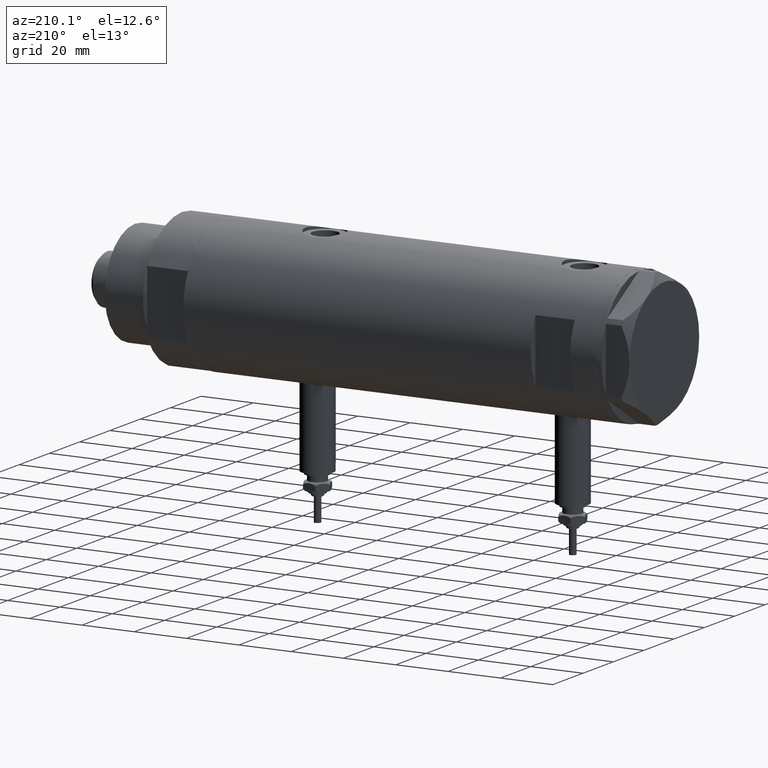
[diagram: clean part render]
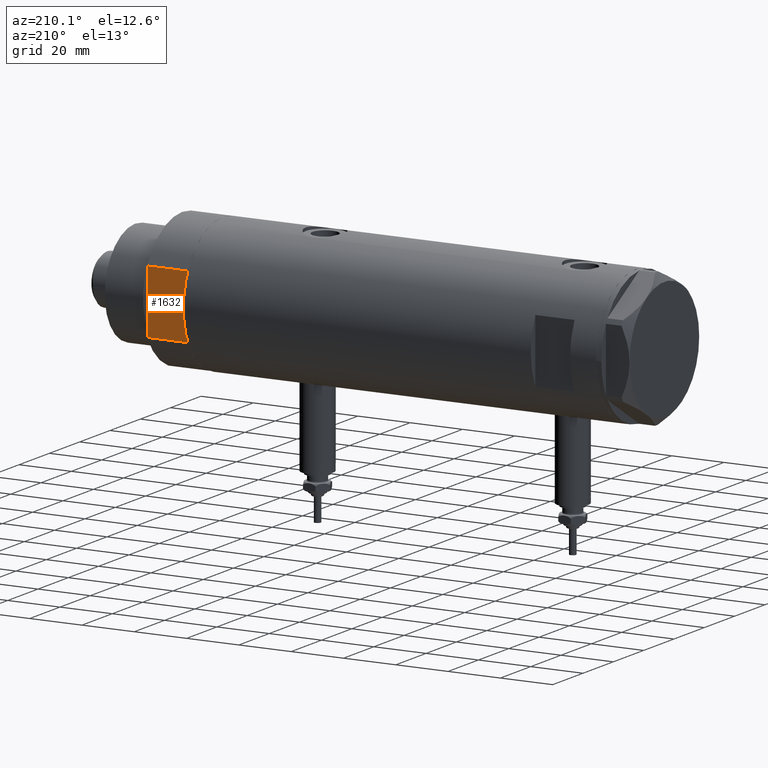
[diagram: same view with one face highlighted and labeled with its STEP entity id]
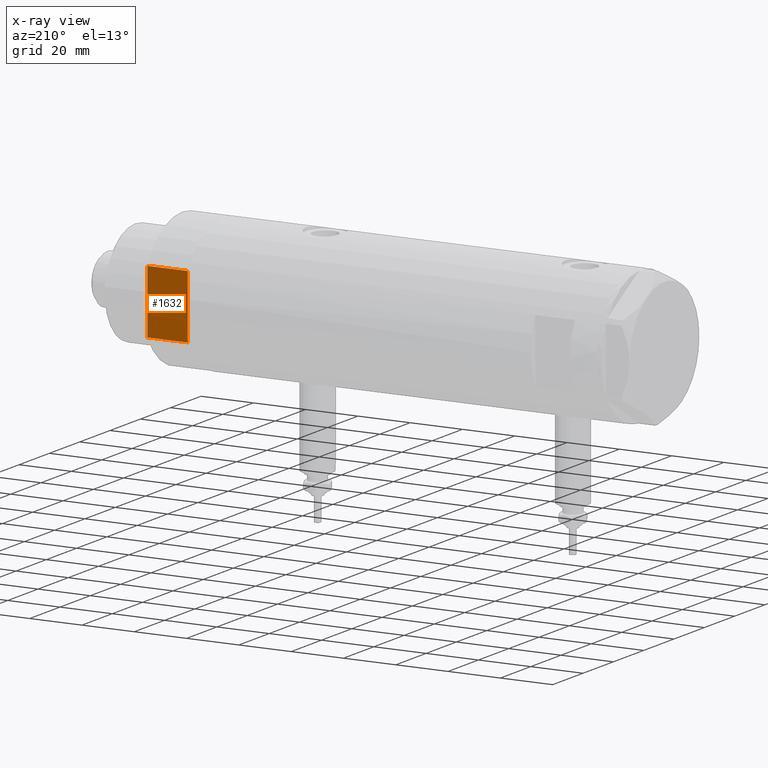
[diagram: x-ray of the same camera — body ghosted, the highlighted face saturated]
A machine part, auxiliary view. The second image highlights one B-rep face of the part: STEP entity #1632.
The next image is the same camera in x-ray: the body ghosted, the highlighted face saturated — about 0% of this face is hidden behind the body in this view.
In plain terms, the highlighted planar face has unit normal (0, -1, -0).
Its self-contained STEP definition (entity closure, byte-faithful):
#446 = LINE ( 'NONE', #5811, #4795 ) ;
#551 = ORIENTED_EDGE ( 'NONE', *, *, #1533, .F. ) ;
#588 = VERTEX_POINT ( 'NONE', #6152 ) ;
#621 = ORIENTED_EDGE ( 'NONE', *, *, #6275, .T. ) ;
#719 = VERTEX_POINT ( 'NONE', #5365 ) ;
#1178 = AXIS2_PLACEMENT_3D ( 'NONE', #2046, #4497, #2011 ) ;
#1315 = VERTEX_POINT ( 'NONE', #1731 ) ;
#1379 = DIRECTION ( 'NONE',  ( -0.000000000000000000, -0.000000000000000000, 1.000000000000000000 ) ) ;
#1533 = EDGE_CURVE ( 'NONE', #1315, #588, #446, .T. ) ;
#1632 = ADVANCED_FACE ( 'NONE', ( #5488 ), #2136, .F. ) ;
#1731 = CARTESIAN_POINT ( 'NONE',  ( 12.12435565298214080, 23.00000000000000355, 0.000000000000000000 ) ) ;
#2011 = DIRECTION ( 'NONE',  ( 0.000000000000000000, -0.000000000000000000, -1.000000000000000000 ) ) ;
#2046 = CARTESIAN_POINT ( 'NONE',  ( -12.12435565298215145, 23.00000000000000355, 0.000000000000000000 ) ) ;
#2136 = PLANE ( 'NONE',  #1178 ) ;
#2225 = LINE ( 'NONE', #4187, #3257 ) ;
#2954 = VECTOR ( 'NONE', #5975, 1000.000000000000000 ) ;
#2994 = LINE ( 'NONE', #3025, #2954 ) ;
#3025 = CARTESIAN_POINT ( 'NONE',  ( -12.12435565298215145, 23.00000000000000355, 15.50000000000000000 ) ) ;
#3056 = EDGE_LOOP ( 'NONE', ( #5538, #551, #4707, #621 ) ) ;
#3257 = VECTOR ( 'NONE', #6045, 1000.000000000000000 ) ;
#3402 = EDGE_CURVE ( 'NONE', #719, #1315, #4026, .T. ) ;
#3488 = CARTESIAN_POINT ( 'NONE',  ( -12.12435565298215145, 23.00000000000000355, 0.000000000000000000 ) ) ;
#3522 = VERTEX_POINT ( 'NONE', #5196 ) ;
#4026 = LINE ( 'NONE', #3488, #4693 ) ;
#4187 = CARTESIAN_POINT ( 'NONE',  ( -12.12435565298215145, 23.00000000000000355, 0.000000000000000000 ) ) ;
#4497 = DIRECTION ( 'NONE',  ( 0.000000000000000000, -1.000000000000000000, 0.000000000000000000 ) ) ;
#4693 = VECTOR ( 'NONE', #5391, 1000.000000000000000 ) ;
#4707 = ORIENTED_EDGE ( 'NONE', *, *, #3402, .F. ) ;
#4795 = VECTOR ( 'NONE', #1379, 1000.000000000000000 ) ;
#4943 = EDGE_CURVE ( 'NONE', #3522, #588, #2994, .T. ) ;
#5196 = CARTESIAN_POINT ( 'NONE',  ( -12.12435565298214613, 23.00000000000000355, 15.50000000000000000 ) ) ;
#5365 = CARTESIAN_POINT ( 'NONE',  ( -12.12435565298215145, 23.00000000000000355, 0.000000000000000000 ) ) ;
#5391 = DIRECTION ( 'NONE',  ( 1.000000000000000000, 0.000000000000000000, 0.000000000000000000 ) ) ;
#5488 = FACE_OUTER_BOUND ( 'NONE', #3056, .T. ) ;
#5538 = ORIENTED_EDGE ( 'NONE', *, *, #4943, .T. ) ;
#5811 = CARTESIAN_POINT ( 'NONE',  ( 12.12435565298215323, 23.00000000000000355, 0.000000000000000000 ) ) ;
#5975 = DIRECTION ( 'NONE',  ( 1.000000000000000000, 0.000000000000000000, 0.000000000000000000 ) ) ;
#6045 = DIRECTION ( 'NONE',  ( -0.000000000000000000, -0.000000000000000000, 1.000000000000000000 ) ) ;
#6152 = CARTESIAN_POINT ( 'NONE',  ( 12.12435565298214790, 23.00000000000000355, 15.50000000000000000 ) ) ;
#6275 = EDGE_CURVE ( 'NONE', #719, #3522, #2225, .T. ) ;